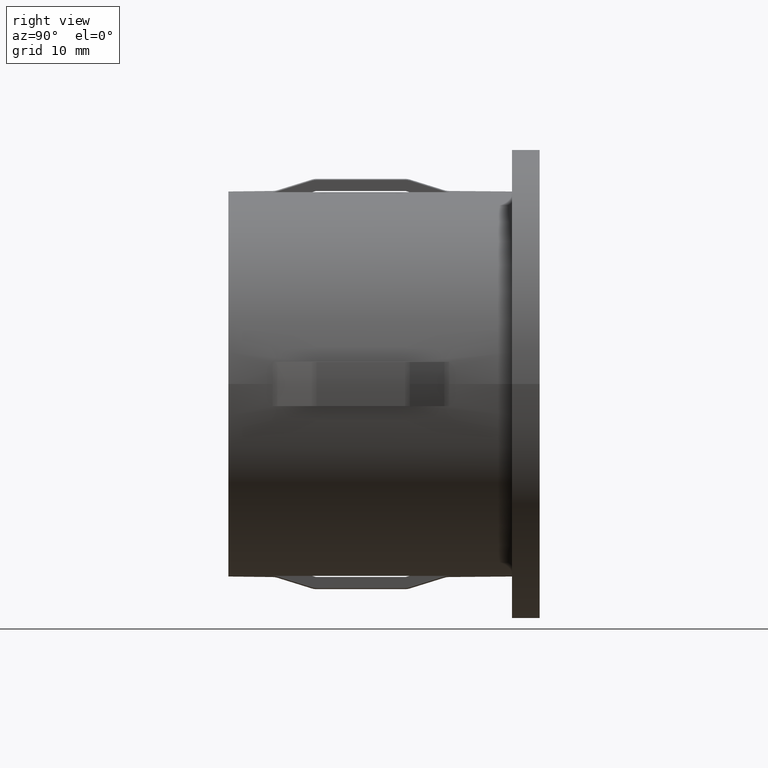
[diagram: clean part render]
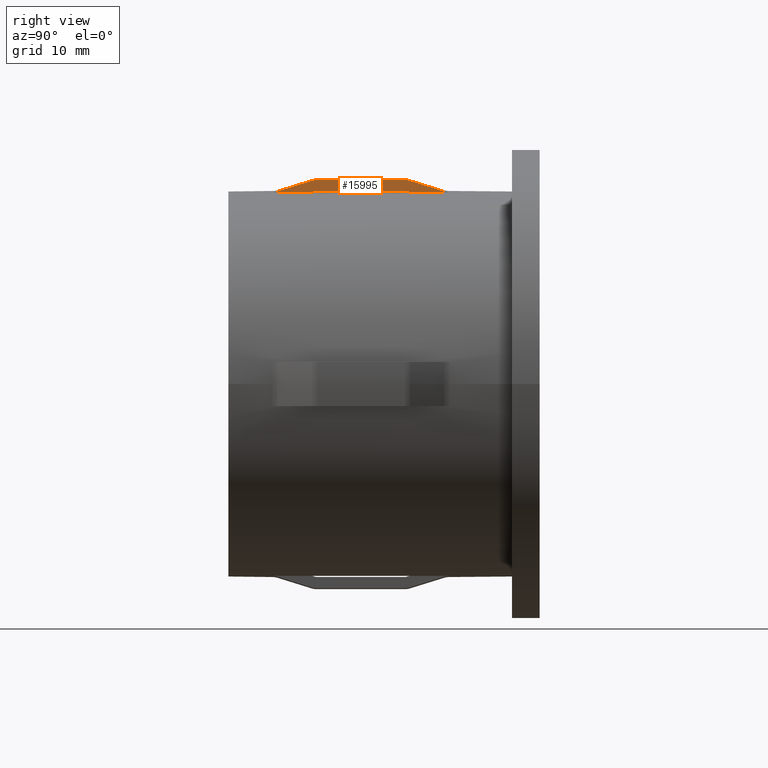
[diagram: same view with one face highlighted and labeled with its STEP entity id]
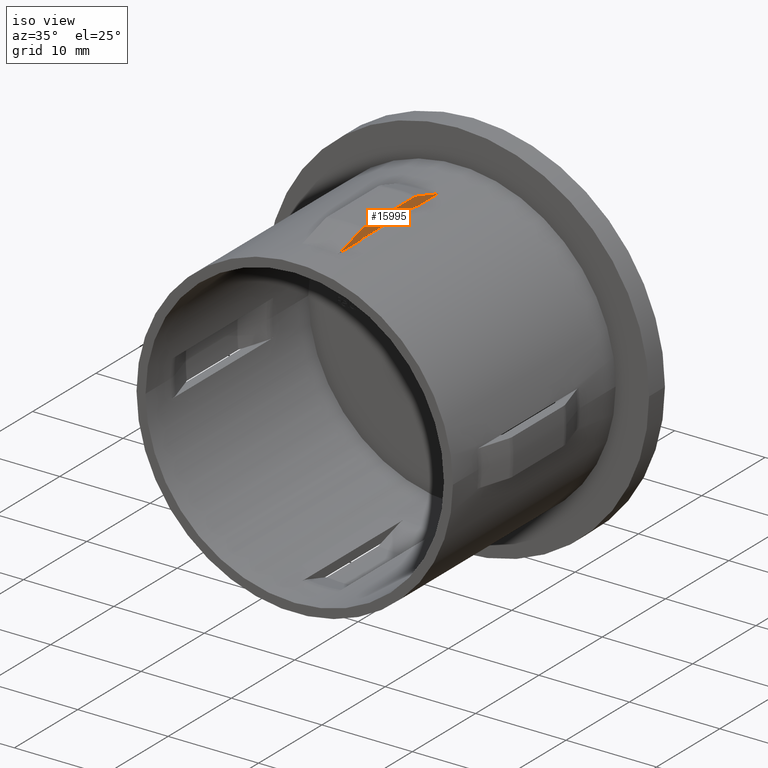
[diagram: same view with one face highlighted and labeled with its STEP entity id]
A machine part, right view. The second image highlights one B-rep face of the part: STEP entity #15995.
A second angle (iso view) of the same face is appended — the face is thin or edge-on in the first view.
In plain terms, the highlighted planar face has unit normal (-1, 0, 0).
Its self-contained STEP definition (entity closure, byte-faithful):
#31 = EDGE_CURVE ( 'NONE', #1181, #15922, #3635, .T. ) ;
#201 = CARTESIAN_POINT ( 'NONE',  ( 2.000000000000004400, 7.627628371290446900, 18.44690385974555400 ) ) ;
#295 = ORIENTED_EDGE ( 'NONE', *, *, #7503, .T. ) ;
#398 = CARTESIAN_POINT ( 'NONE',  ( 2.000000000000004400, 7.601915560991691300, 17.38533865071371300 ) ) ;
#439 = CARTESIAN_POINT ( 'NONE',  ( 2.000000000000004400, 4.772809861781157200, 17.55568321200615500 ) ) ;
#467 = VECTOR ( 'NONE', #6357, 1000.000000000000000 ) ;
#606 = ORIENTED_EDGE ( 'NONE', *, *, #7251, .F. ) ;
#674 = B_SPLINE_CURVE_WITH_KNOTS ( 'NONE', 3,
 ( #4196, #10446, #439, #9194, #1684, #15581, #5547 ),
 .UNSPECIFIED., .F., .F.,
 ( 4, 3, 4 ),
 ( 0.005994334962637885700, 0.006510251291945072200, 0.009253412952626717900 ),
 .UNSPECIFIED. ) ;
#720 = CARTESIAN_POINT ( 'NONE',  ( 2.000000000000004000, 4.075704102888577700, 17.38533865071371000 ) ) ;
#923 = CARTESIAN_POINT ( 'NONE',  ( 2.000000000000004000, 7.900279923465132200, 17.47652765026605300 ) ) ;
#1144 = CARTESIAN_POINT ( 'NONE',  ( 2.000000000000004000, 7.974907436318599000, 17.48599439551551900 ) ) ;
#1181 = VERTEX_POINT ( 'NONE', #7886 ) ;
#1205 = DIRECTION ( 'NONE',  ( -1.000000000000000000, 0.0000000000000000000, 7.888854870727862200E-017 ) ) ;
#1305 = EDGE_CURVE ( 'NONE', #11137, #11534, #9177, .T. ) ;
#1348 = LINE ( 'NONE', #10330, #12916 ) ;
#1365 = VERTEX_POINT ( 'NONE', #4379 ) ;
#1598 = CARTESIAN_POINT ( 'NONE',  ( 2.000000000000004400, 16.02492444335499800, 17.48599439551552200 ) ) ;
#1684 = CARTESIAN_POINT ( 'NONE',  ( 2.000000000000004400, 5.809787013353718200, 17.87949645575055200 ) ) ;
#1717 = CARTESIAN_POINT ( 'NONE',  ( 2.000000000000004400, 18.68268839510957900, 17.72573497065645800 ) ) ;
#2516 = LINE ( 'NONE', #6243, #6027 ) ;
#2547 = B_SPLINE_CURVE_WITH_KNOTS ( 'NONE', 3,
 ( #8763, #6284, #8874, #9972, #11451, #12647 ),
 .UNSPECIFIED., .F., .F.,
 ( 4, 2, 4 ),
 ( 0.009290538643744808400, 0.009514924444277081400, 0.009739310244809354400 ),
 .UNSPECIFIED. ) ;
#2638 = CARTESIAN_POINT ( 'NONE',  ( 2.000000000000004400, 7.701916614515732300, 18.46399539355989100 ) ) ;
#2675 = CARTESIAN_POINT ( 'NONE',  ( 2.000000000000004400, 7.851832458961293800, 17.46338980338581600 ) ) ;
#2801 = CARTESIAN_POINT ( 'NONE',  ( 2.000000000000004400, 7.999999999999992900, 18.49216050114209900 ) ) ;
#2884 = VERTEX_POINT ( 'NONE', #13500 ) ;
#2958 = VERTEX_POINT ( 'NONE', #7551 ) ;
#2970 = VERTEX_POINT ( 'NONE', #6187 ) ;
#2978 = CARTESIAN_POINT ( 'NONE',  ( 2.000000000000004400, 19.55549737688394200, 17.45315522383636900 ) ) ;
#3074 = CARTESIAN_POINT ( 'NONE',  ( 2.000000000000004000, 19.85012294628809600, 17.39099993795074500 ) ) ;
#3095 = EDGE_CURVE ( 'NONE', #10312, #8799, #7751, .T. ) ;
#3229 = CARTESIAN_POINT ( 'NONE',  ( 2.000000000000004000, 4.299743299397922800, 17.41386789691303600 ) ) ;
#3345 = DIRECTION ( 'NONE',  ( -0.0000000000000000000, -1.000000000000000000, -0.0000000000000000000 ) ) ;
#3635 = B_SPLINE_CURVE_WITH_KNOTS ( 'NONE', 3,
 ( #12664, #201, #2638, #15084, #7731, #13828 ),
 .UNSPECIFIED., .F., .F.,
 ( 4, 2, 4 ),
 ( 0.009321604259326172300, 0.009546111182142014500, 0.009770618104957860100 ),
 .UNSPECIFIED. ) ;
#3942 = CARTESIAN_POINT ( 'NONE',  ( 2.000000000000004400, 16.00000000000000700, 17.48599439551563600 ) ) ;
#4180 = CARTESIAN_POINT ( 'NONE',  ( 2.000000000000004400, 16.44450262311604400, 18.42439221666993600 ) ) ;
#4196 = CARTESIAN_POINT ( 'NONE',  ( 2.000000000000004400, 4.444502623116132000, 17.45315522383615200 ) ) ;
#4379 = CARTESIAN_POINT ( 'NONE',  ( 2.000000000000004400, 16.39808443900831800, 17.38533865071371300 ) ) ;
#4697 = CARTESIAN_POINT ( 'NONE',  ( 2.000000000000004400, 3.999999999999993300, 17.38533865071371300 ) ) ;
#4938 = B_SPLINE_CURVE_WITH_KNOTS ( 'NONE', 3,
 ( #9475, #15977, #8527, #13585 ),
 .UNSPECIFIED., .F., .F.,
 ( 4, 4 ),
 ( 0.005733411264842920900, 0.005995232646540169100 ),
 .UNSPECIFIED. ) ;
#5092 = CARTESIAN_POINT ( 'NONE',  ( 2.000000000000004400, 19.92479403249521400, 17.38533865071369900 ) ) ;
#5122 = ORIENTED_EDGE ( 'NONE', *, *, #10630, .F. ) ;
#5133 = ORIENTED_EDGE ( 'NONE', *, *, #1305, .F. ) ;
#5547 = CARTESIAN_POINT ( 'NONE',  ( 2.000000000000004400, 7.555497376883945300, 18.42439221666993600 ) ) ;
#5677 = B_SPLINE_CURVE_WITH_KNOTS ( 'NONE', 3,
 ( #15293, #9037, #10130, #12815, #1598, #3942 ),
 .UNSPECIFIED., .F., .F.,
 ( 4, 2, 4 ),
 ( 0.003026401731865541000, 0.003100863802744113900, 0.003175325873622687300 ),
 .UNSPECIFIED. ) ;
#6027 = VECTOR ( 'NONE', #10035, 1000.000000000000000 ) ;
#6064 = VERTEX_POINT ( 'NONE', #8068 ) ;
#6187 = CARTESIAN_POINT ( 'NONE',  ( 2.000000000000004400, 4.444502623116132000, 17.45315522383615200 ) ) ;
#6243 = CARTESIAN_POINT ( 'NONE',  ( 2.000000000000004400, 20.00000000000000000, 18.49216050114209900 ) ) ;
#6284 = CARTESIAN_POINT ( 'NONE',  ( 2.000000000000004000, 16.07547828745845600, 18.49216050114210600 ) ) ;
#6331 = ORIENTED_EDGE ( 'NONE', *, *, #13374, .F. ) ;
#6344 = CARTESIAN_POINT ( 'NONE',  ( 2.000000000000004400, 20.00000000000000000, 17.38533865071371300 ) ) ;
#6357 = DIRECTION ( 'NONE',  ( -0.0000000000000000000, -1.000000000000000000, -0.0000000000000000000 ) ) ;
#6507 = ORIENTED_EDGE ( 'NONE', *, *, #12986, .F. ) ;
#6571 = VECTOR ( 'NONE', #3345, 1000.000000000000000 ) ;
#6638 = CARTESIAN_POINT ( 'NONE',  ( 2.000000000000004400, 16.93700294605247000, 18.27067834221716700 ) ) ;
#6787 = CARTESIAN_POINT ( 'NONE',  ( 2.000000000000004000, 19.62774327718853600, 17.43059270486024200 ) ) ;
#6934 = CARTESIAN_POINT ( 'NONE',  ( 2.000000000000004400, 16.14816754103868100, 17.46338980338574800 ) ) ;
#6941 = CARTESIAN_POINT ( 'NONE',  ( 2.000000000000004400, 3.999999999999993300, 17.38533865071371300 ) ) ;
#7243 = CARTESIAN_POINT ( 'NONE',  ( 2.000000000000004400, 19.55549737688394200, 17.45315522383636900 ) ) ;
#7251 = EDGE_CURVE ( 'NONE', #6064, #14840, #1348, .T. ) ;
#7349 = B_SPLINE_CURVE_WITH_KNOTS ( 'NONE', 3,
 ( #6941, #720, #11784, #3229, #11994, #15503 ),
 .UNSPECIFIED., .F., .F.,
 ( 4, 2, 4 ),
 ( 0.009348505669429520500, 0.009573126104931734700, 0.009797746540433948900 ),
 .UNSPECIFIED. ) ;
#7383 = B_SPLINE_CURVE_WITH_KNOTS ( 'NONE', 3,
 ( #4180, #15357, #14061, #6638, #15467, #1717, #2978 ),
 .UNSPECIFIED., .F., .F.,
 ( 4, 3, 4 ),
 ( 0.005994320483641651900, 0.006510251212998114700, 0.009253398516248250200 ),
 .UNSPECIFIED. ) ;
#7503 = EDGE_CURVE ( 'NONE', #2884, #15922, #2516, .T. ) ;
#7535 = AXIS2_PLACEMENT_3D ( 'NONE', #10006, #1205, #14993 ) ;
#7551 = CARTESIAN_POINT ( 'NONE',  ( 2.000000000000004400, 16.44450262311604400, 18.42439221666993600 ) ) ;
#7731 = CARTESIAN_POINT ( 'NONE',  ( 2.000000000000004900, 7.924965511415383200, 18.49216050114214100 ) ) ;
#7751 = B_SPLINE_CURVE_WITH_KNOTS ( 'NONE', 3,
 ( #2675, #12761, #14358, #398 ),
 .UNSPECIFIED., .F., .F.,
 ( 4, 4 ),
 ( 0.005263605398544418100, 0.005525426781918147400 ),
 .UNSPECIFIED. ) ;
#7835 = ORIENTED_EDGE ( 'NONE', *, *, #9003, .F. ) ;
#7836 = ORIENTED_EDGE ( 'NONE', *, *, #14103, .F. ) ;
#7886 = CARTESIAN_POINT ( 'NONE',  ( 2.000000000000004400, 7.555497376883945300, 18.42439221666993600 ) ) ;
#8068 = CARTESIAN_POINT ( 'NONE',  ( 2.000000000000004400, 16.00000000000000700, 17.48599439551563600 ) ) ;
#8098 = CARTESIAN_POINT ( 'NONE',  ( 2.000000000000004400, 7.601915560991691300, 17.38533865071371300 ) ) ;
#8471 = LINE ( 'NONE', #8782, #467 ) ;
#8527 = CARTESIAN_POINT ( 'NONE',  ( 2.000000000000004400, 16.23147338882610700, 17.43737344134618200 ) ) ;
#8763 = CARTESIAN_POINT ( 'NONE',  ( 2.000000000000004400, 15.99999999999999300, 18.49216050114209900 ) ) ;
#8782 = CARTESIAN_POINT ( 'NONE',  ( 2.000000000000004400, 20.00000000000000000, 17.38533865071371300 ) ) ;
#8799 = VERTEX_POINT ( 'NONE', #8098 ) ;
#8874 = CARTESIAN_POINT ( 'NONE',  ( 2.000000000000004900, 16.15153005477587200, 18.48634450701084800 ) ) ;
#9003 = EDGE_CURVE ( 'NONE', #1365, #12643, #4938, .T. ) ;
#9037 = CARTESIAN_POINT ( 'NONE',  ( 2.000000000000004000, 16.12418864890765100, 17.47087839579021600 ) ) ;
#9177 = B_SPLINE_CURVE_WITH_KNOTS ( 'NONE', 3,
 ( #10475, #6787, #9268, #3074, #5092, #6344 ),
 .UNSPECIFIED., .F., .F.,
 ( 4, 2, 4 ),
 ( 0.009346613464329410100, 0.009571231062241857000, 0.009795848660154303800 ),
 .UNSPECIFIED. ) ;
#9194 = CARTESIAN_POINT ( 'NONE',  ( 2.000000000000004400, 4.936964708876486100, 17.60694327442285700 ) ) ;
#9197 = CARTESIAN_POINT ( 'NONE',  ( 2.000000000000004400, 20.00000000000000000, 17.38533865071371300 ) ) ;
#9268 = CARTESIAN_POINT ( 'NONE',  ( 2.000000000000004900, 19.70184096328764100, 17.41354376249174900 ) ) ;
#9475 = CARTESIAN_POINT ( 'NONE',  ( 2.000000000000004400, 16.39808443900831800, 17.38533865071371300 ) ) ;
#9972 = CARTESIAN_POINT ( 'NONE',  ( 2.000000000000004000, 16.30012169727921600, 18.46358383008880800 ) ) ;
#10006 = CARTESIAN_POINT ( 'NONE',  ( 2.000000000000003100, 20.00000000000000000, -1.577770974145575200E-016 ) ) ;
#10035 = DIRECTION ( 'NONE',  ( -0.0000000000000000000, -1.000000000000000000, -0.0000000000000000000 ) ) ;
#10130 = CARTESIAN_POINT ( 'NONE',  ( 2.000000000000004900, 16.09968754776880600, 17.47653451941092200 ) ) ;
#10312 = VERTEX_POINT ( 'NONE', #12437 ) ;
#10330 = CARTESIAN_POINT ( 'NONE',  ( 2.000000000000004400, 28.19999999999999900, 17.48599439551551900 ) ) ;
#10370 = EDGE_CURVE ( 'NONE', #2884, #2958, #2547, .T. ) ;
#10446 = CARTESIAN_POINT ( 'NONE',  ( 2.000000000000004400, 4.608655825947946200, 17.50442055153346000 ) ) ;
#10475 = CARTESIAN_POINT ( 'NONE',  ( 2.000000000000004400, 19.55549737688394200, 17.45315522383636900 ) ) ;
#10548 = ORIENTED_EDGE ( 'NONE', *, *, #10659, .F. ) ;
#10630 = EDGE_CURVE ( 'NONE', #10697, #2970, #7349, .T. ) ;
#10659 = EDGE_CURVE ( 'NONE', #8799, #10697, #11857, .T. ) ;
#10697 = VERTEX_POINT ( 'NONE', #4697 ) ;
#11095 = CARTESIAN_POINT ( 'NONE',  ( 2.000000000000004400, 7.851832458961293800, 17.46338980338581600 ) ) ;
#11137 = VERTEX_POINT ( 'NONE', #7243 ) ;
#11265 = PLANE ( 'NONE',  #7535 ) ;
#11444 = ORIENTED_EDGE ( 'NONE', *, *, #31, .F. ) ;
#11451 = CARTESIAN_POINT ( 'NONE',  ( 2.000000000000004400, 16.37300846102182600, 18.44670510826803400 ) ) ;
#11534 = VERTEX_POINT ( 'NONE', #9197 ) ;
#11647 = DIRECTION ( 'NONE',  ( 1.714505518806297100E-016, -1.000000000000000000, 0.0000000000000000000 ) ) ;
#11784 = CARTESIAN_POINT ( 'NONE',  ( 2.000000000000004900, 4.151494362266543400, 17.39116432852880600 ) ) ;
#11857 = LINE ( 'NONE', #14573, #6571 ) ;
#11882 = ORIENTED_EDGE ( 'NONE', *, *, #10370, .F. ) ;
#11994 = CARTESIAN_POINT ( 'NONE',  ( 2.000000000000004400, 4.372707531995307500, 17.43073349334403600 ) ) ;
#12245 = CARTESIAN_POINT ( 'NONE',  ( 2.000000000000004400, 7.875627714665290200, 17.47082104625359700 ) ) ;
#12437 = CARTESIAN_POINT ( 'NONE',  ( 2.000000000000004400, 7.851832458961293800, 17.46338980338581600 ) ) ;
#12512 = EDGE_CURVE ( 'NONE', #12643, #6064, #5677, .T. ) ;
#12643 = VERTEX_POINT ( 'NONE', #6934 ) ;
#12647 = CARTESIAN_POINT ( 'NONE',  ( 2.000000000000004400, 16.44450262311604400, 18.42439221666993600 ) ) ;
#12664 = CARTESIAN_POINT ( 'NONE',  ( 2.000000000000004400, 7.555497376883945300, 18.42439221666993600 ) ) ;
#12761 = CARTESIAN_POINT ( 'NONE',  ( 2.000000000000004400, 7.768526611173892400, 17.43737344134618900 ) ) ;
#12815 = CARTESIAN_POINT ( 'NONE',  ( 2.000000000000004000, 16.05015847773643100, 17.48408997955921900 ) ) ;
#12916 = VECTOR ( 'NONE', #11647, 1000.000000000000000 ) ;
#12986 = EDGE_CURVE ( 'NONE', #2970, #1181, #674, .T. ) ;
#13026 = B_SPLINE_CURVE_WITH_KNOTS ( 'NONE', 3,
 ( #16018, #1144, #15958, #923, #12245, #11095 ),
 .UNSPECIFIED., .F., .F.,
 ( 4, 2, 4 ),
 ( 0.003024447268639419700, 0.003098893467116023100, 0.003173339665592626000 ),
 .UNSPECIFIED. ) ;
#13374 = EDGE_CURVE ( 'NONE', #11534, #1365, #8471, .T. ) ;
#13490 = EDGE_CURVE ( 'NONE', #2958, #11137, #7383, .T. ) ;
#13500 = CARTESIAN_POINT ( 'NONE',  ( 2.000000000000004400, 15.99999999999999300, 18.49216050114209900 ) ) ;
#13585 = CARTESIAN_POINT ( 'NONE',  ( 2.000000000000004400, 16.14816754103868100, 17.46338980338574800 ) ) ;
#13828 = CARTESIAN_POINT ( 'NONE',  ( 2.000000000000004400, 7.999999999999992900, 18.49216050114209900 ) ) ;
#14061 = CARTESIAN_POINT ( 'NONE',  ( 2.000000000000004400, 16.77283689159826700, 18.32191860674097200 ) ) ;
#14103 = EDGE_CURVE ( 'NONE', #14840, #10312, #13026, .T. ) ;
#14358 = CARTESIAN_POINT ( 'NONE',  ( 2.000000000000004400, 7.685220977546910200, 17.41135639354271400 ) ) ;
#14573 = CARTESIAN_POINT ( 'NONE',  ( 2.000000000000004400, 20.00000000000000000, 17.38533865071371300 ) ) ;
#14691 = EDGE_LOOP ( 'NONE', ( #15218, #11882, #295, #11444, #6507, #5122, #10548, #15877, #7836, #606, #15303, #7835, #6331, #5133 ) ) ;
#14840 = VERTEX_POINT ( 'NONE', #15284 ) ;
#14993 = DIRECTION ( 'NONE',  ( 7.888854870727862200E-017, 0.0000000000000000000, 1.000000000000000000 ) ) ;
#15084 = CARTESIAN_POINT ( 'NONE',  ( 2.000000000000004400, 7.850341808459350400, 18.48652923626701000 ) ) ;
#15101 = FACE_OUTER_BOUND ( 'NONE', #14691, .T. ) ;
#15218 = ORIENTED_EDGE ( 'NONE', *, *, #13490, .F. ) ;
#15284 = CARTESIAN_POINT ( 'NONE',  ( 2.000000000000008000, 7.999999999999996400, 17.48599439551551900 ) ) ;
#15293 = CARTESIAN_POINT ( 'NONE',  ( 2.000000000000004400, 16.14816754103868100, 17.46338980338574800 ) ) ;
#15303 = ORIENTED_EDGE ( 'NONE', *, *, #12512, .F. ) ;
#15357 = CARTESIAN_POINT ( 'NONE',  ( 2.000000000000004400, 16.60867011125461800, 18.37315654567989400 ) ) ;
#15467 = CARTESIAN_POINT ( 'NONE',  ( 2.000000000000004400, 17.80985590714674800, 17.99823945851763100 ) ) ;
#15503 = CARTESIAN_POINT ( 'NONE',  ( 2.000000000000004400, 4.444502623116132000, 17.45315522383615200 ) ) ;
#15581 = CARTESIAN_POINT ( 'NONE',  ( 2.000000000000004400, 6.682632212731705000, 18.15197632679882000 ) ) ;
#15877 = ORIENTED_EDGE ( 'NONE', *, *, #3095, .F. ) ;
#15922 = VERTEX_POINT ( 'NONE', #2801 ) ;
#15958 = CARTESIAN_POINT ( 'NONE',  ( 2.000000000000004900, 7.949800150459150700, 17.48408557262595400 ) ) ;
#15977 = CARTESIAN_POINT ( 'NONE',  ( 2.000000000000004400, 16.31477902245309200, 17.41135639354270700 ) ) ;
#15995 = ADVANCED_FACE ( 'NONE', ( #15101 ), #11265, .F. ) ;
#16018 = CARTESIAN_POINT ( 'NONE',  ( 2.000000000000008000, 7.999999999999996400, 17.48599439551551900 ) ) ;